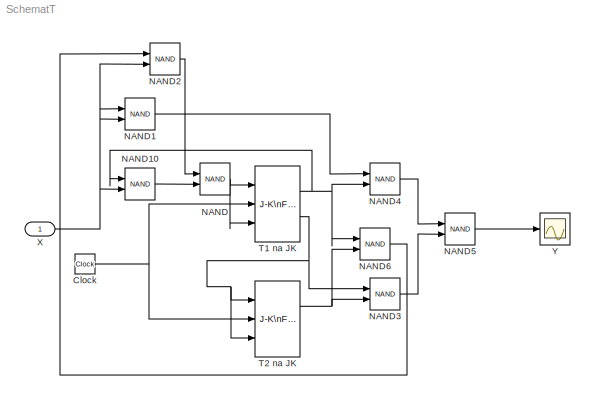
MODEL SchematT
KIND model
BLOCK [Clock] Clock
  SID = 4
BLOCK [Logic] NAND
  AllPortsSameDT = off
  IconShape = distinctive
  Operator = NAND
  OutDataTypeStr = boolean
  Ports = [2, 1]
  SID = 5
BLOCK [Logic] NAND1
  AllPortsSameDT = off
  IconShape = distinctive
  Operator = NAND
  OutDataTypeStr = boolean
  Ports = [2, 1]
  SID = 6
BLOCK [Logic] NAND10
  AllPortsSameDT = off
  IconShape = distinctive
  Operator = NAND
  OutDataTypeStr = boolean
  Ports = [2, 1]
  SID = 15
BLOCK [Logic] NAND2
  AllPortsSameDT = off
  IconShape = distinctive
  Operator = NAND
  OutDataTypeStr = boolean
  Ports = [2, 1]
  SID = 7
BLOCK [Logic] NAND3
  AllPortsSameDT = off
  IconShape = distinctive
  Operator = NAND
  OutDataTypeStr = boolean
  Ports = [2, 1]
  SID = 8
BLOCK [Logic] NAND4
  AllPortsSameDT = off
  IconShape = distinctive
  Operator = NAND
  OutDataTypeStr = boolean
  Ports = [2, 1]
  SID = 9
BLOCK [Logic] NAND5
  AllPortsSameDT = off
  IconShape = distinctive
  Operator = NAND
  OutDataTypeStr = boolean
  Ports = [2, 1]
  SID = 10
BLOCK [Logic] NAND6
  AllPortsSameDT = off
  IconShape = distinctive
  Operator = NAND
  OutDataTypeStr = boolean
  Ports = [2, 1]
  SID = 11
BLOCK [Reference] T1 na JK  REF=simulink_extras/Flip Flops/J-K\nFlip-Flop
  Ports = [3, 2]
  SID = 1
  SourceBlock = simulink_extras/Flip Flops/J-K\nFlip-Flop
  SourceProductBaseCode = SL
  SourceProductName = Simulink
  SourceType = JKFlipFlop
  initial_condition = 0
BLOCK [Reference] T2 na JK  REF=simulink_extras/Flip Flops/J-K\nFlip-Flop
  Ports = [3, 2]
  SID = 2
  SourceBlock = simulink_extras/Flip Flops/J-K\nFlip-Flop
  SourceProductBaseCode = SL
  SourceProductName = Simulink
  SourceType = JKFlipFlop
  initial_condition = 0
BLOCK [Inport] X
  IconDisplay = Port number
  SID = 3
BLOCK [Scope] Y
  Floating = off
  NumInputPorts = 1
  Ports = [1]
  SID = 19
  ScopeSpecificationString = Simulink.scopes.TimeScopeBlockCfg('CurrentConfiguration', extmgr.ConfigurationSet(extmgr.Configuration('Core','General UI',true),extmgr.Configuration('Core','Source UI',true),extmgr.Configuration('Sources','WiredSimulink',true),extmgr.Configuration('Visuals','Time Domain',true),extmgr.Configuration('Tools','Plot Navigation',true),extmgr.Configuration('Tools','Measurements',true)),'Version','2018b'...<+1ch>
NET Clock:1 -> T1 na JK:2, T2 na JK:2
LINE NAND10:1 -> NAND:2
LINE NAND1:1 -> NAND4:1
LINE NAND2:1 -> NAND:1
LINE NAND3:1 -> NAND5:2
LINE NAND4:1 -> NAND5:1
LINE NAND5:1 -> Y:1
LINE NAND6:1 -> NAND2:1
NET NAND:1 -> T1 na JK:1, T1 na JK:3
NET T1 na JK:1 -> NAND10:1, NAND4:2, NAND6:1
NET T1 na JK:2 -> NAND3:1, T2 na JK:1, T2 na JK:3
NET T2 na JK:1 -> NAND3:2, NAND6:2
NET X:1 -> NAND10:2, NAND1:1, NAND1:2, NAND2:2
note: NET lines group one-source signal fan-out (src -> all destinations, sorted); 1:1 wires keep LINE
